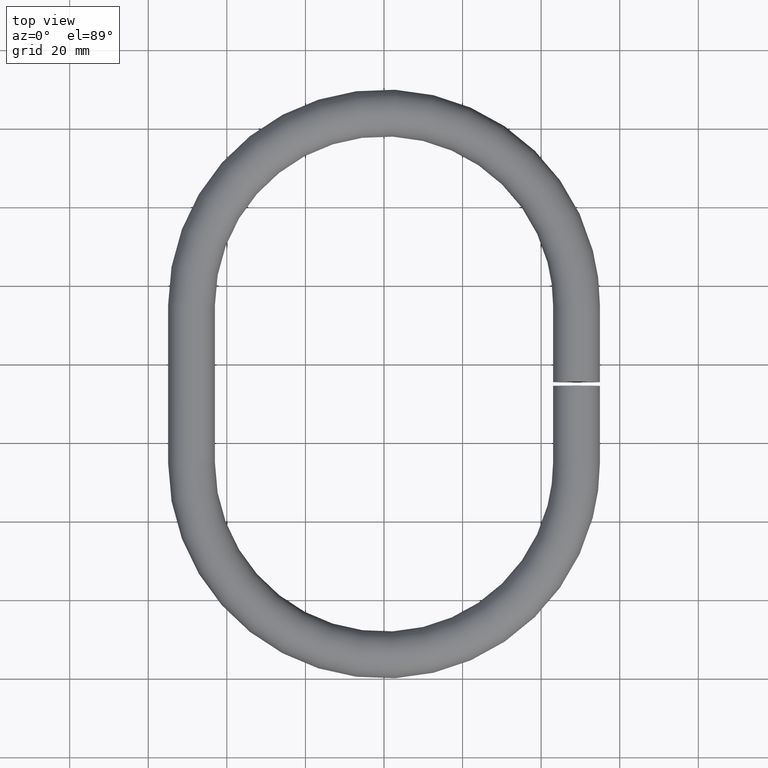
[diagram: clean part render]
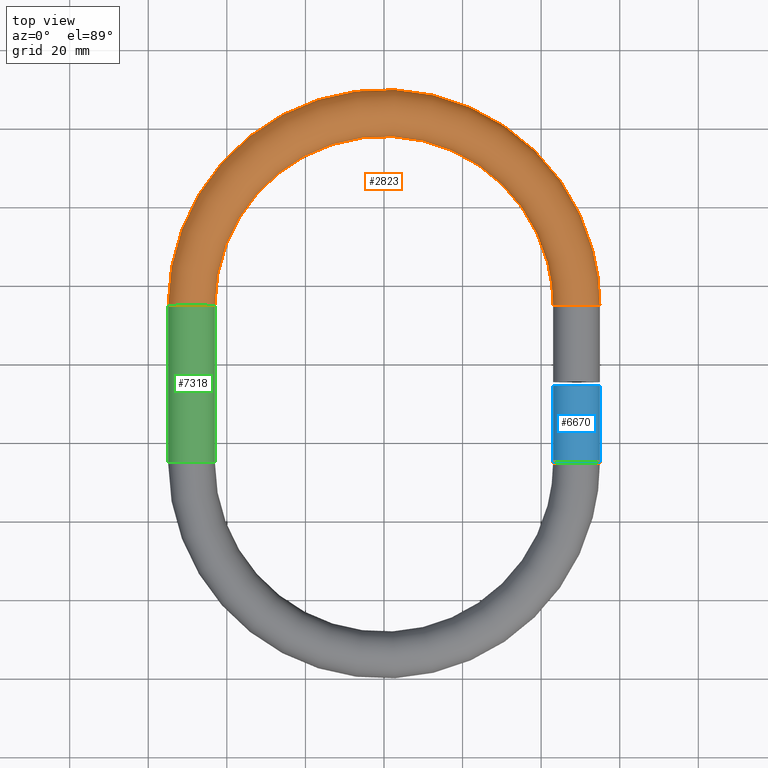
[diagram: same view with three faces highlighted in distinct colors, each labeled with its STEP entity id]
A machine part, top view with three faces highlighted in distinct colors.
Their STEP definitions:

[orange] entity #2823 — the highlighted toroidal blend (fillet) surface has major radius 49 mm and minor (blend) radius 6 mm.
#383 = EDGE_LOOP ( 'NONE', ( #5763 ) ) ;
#1104 = DIRECTION ( 'NONE',  ( -0.0000000000000000000, -0.0000000000000000000, -1.000000000000000000 ) ) ;
#1250 = DIRECTION ( 'NONE',  ( 0.0000000000000000000, 0.0000000000000000000, -1.000000000000000000 ) ) ;
#1458 = DIRECTION ( 'NONE',  ( 0.0000000000000000000, 0.0000000000000000000, -1.000000000000000000 ) ) ;
#2028 = AXIS2_PLACEMENT_3D ( 'NONE', #3315, #7623, #1250 ) ;
#2581 = EDGE_CURVE ( 'NONE', #6643, #6643, #3120, .T. ) ;
#2781 = FACE_OUTER_BOUND ( 'NONE', #383, .T. ) ;
#2823 = ADVANCED_FACE ( 'NONE', ( #2781, #6150 ), #5475, .T. ) ;
#2857 = EDGE_LOOP ( 'NONE', ( #7965 ) ) ;
#3120 = CIRCLE ( 'NONE', #8008, 6.000000000000000900 ) ;
#3205 = DIRECTION ( 'NONE',  ( -1.000000000000000000, 0.0000000000000000000, 0.0000000000000000000 ) ) ;
#3269 = VERTEX_POINT ( 'NONE', #7945 ) ;
#3315 = CARTESIAN_POINT ( 'NONE',  ( -49.00000000000000000, 94.99999999999998600, 0.0000000000000000000 ) ) ;
#3665 = CARTESIAN_POINT ( 'NONE',  ( 49.00000000000000000, 95.00000000000001400, 0.0000000000000000000 ) ) ;
#4830 = CIRCLE ( 'NONE', #2028, 6.000000000000000900 ) ;
#5475 = TOROIDAL_SURFACE ( 'NONE', #6383, 49.00000000000000000, 6.000000000000000900 ) ;
#5763 = ORIENTED_EDGE ( 'NONE', *, *, #9082, .F. ) ;
#6150 = FACE_OUTER_BOUND ( 'NONE', #2857, .T. ) ;
#6383 = AXIS2_PLACEMENT_3D ( 'NONE', #8979, #1104, #3205 ) ;
#6643 = VERTEX_POINT ( 'NONE', #8723 ) ;
#7148 = DIRECTION ( 'NONE',  ( -1.836970198721029700E-016, 1.000000000000000000, 0.0000000000000000000 ) ) ;
#7623 = DIRECTION ( 'NONE',  ( 6.123233995736766000E-017, -1.000000000000000000, 0.0000000000000000000 ) ) ;
#7945 = CARTESIAN_POINT ( 'NONE',  ( -49.00000000000000000, 94.99999999999998600, -6.000000000000000900 ) ) ;
#7965 = ORIENTED_EDGE ( 'NONE', *, *, #2581, .T. ) ;
#8008 = AXIS2_PLACEMENT_3D ( 'NONE', #3665, #7148, #1458 ) ;
#8723 = CARTESIAN_POINT ( 'NONE',  ( 49.00000000000000000, 95.00000000000001400, -6.000000000000000900 ) ) ;
#8979 = CARTESIAN_POINT ( 'NONE',  ( 0.0000000000000000000, 95.00000000000000000, 0.0000000000000000000 ) ) ;
#9082 = EDGE_CURVE ( 'NONE', #3269, #3269, #4830, .T. ) ;

[blue] entity #6670 — the highlighted cylindrical surface (bore or boss wall) has radius 6 mm, axis along (0, -1, 0).
#1277 = CARTESIAN_POINT ( 'NONE',  ( 49.00000000000000000, 55.00000000000001400, 0.0000000000000000000 ) ) ;
#1725 = CARTESIAN_POINT ( 'NONE',  ( 49.00000000000000000, 95.00000000000001400, 0.0000000000000000000 ) ) ;
#1902 = DIRECTION ( 'NONE',  ( -1.836970198721029700E-016, 1.000000000000000000, 0.0000000000000000000 ) ) ;
#2238 = DIRECTION ( 'NONE',  ( 0.0000000000000000000, -1.000000000000000000, 0.0000000000000000000 ) ) ;
#2526 = EDGE_CURVE ( 'NONE', #8091, #8091, #5367, .T. ) ;
#2956 = FACE_OUTER_BOUND ( 'NONE', #3461, .T. ) ;
#3046 = AXIS2_PLACEMENT_3D ( 'NONE', #1725, #3227, #7446 ) ;
#3200 = CIRCLE ( 'NONE', #5848, 6.000000000000000900 ) ;
#3227 = DIRECTION ( 'NONE',  ( 0.0000000000000000000, -1.000000000000000000, 0.0000000000000000000 ) ) ;
#3310 = ORIENTED_EDGE ( 'NONE', *, *, #2526, .T. ) ;
#3461 = EDGE_LOOP ( 'NONE', ( #3310 ) ) ;
#3567 = CARTESIAN_POINT ( 'NONE',  ( 49.00000000000000000, 74.50000000000000000, 0.0000000000000000000 ) ) ;
#3704 = CARTESIAN_POINT ( 'NONE',  ( 49.00000000000000000, 55.00000000000001400, -6.000000000000000900 ) ) ;
#4138 = DIRECTION ( 'NONE',  ( 0.0000000000000000000, 0.0000000000000000000, -1.000000000000000000 ) ) ;
#4265 = VERTEX_POINT ( 'NONE', #3704 ) ;
#4680 = EDGE_CURVE ( 'NONE', #4265, #4265, #3200, .T. ) ;
#5302 = ORIENTED_EDGE ( 'NONE', *, *, #4680, .T. ) ;
#5367 = CIRCLE ( 'NONE', #5550, 6.000000000000000900 ) ;
#5550 = AXIS2_PLACEMENT_3D ( 'NONE', #3567, #2238, #7933 ) ;
#5848 = AXIS2_PLACEMENT_3D ( 'NONE', #1277, #1902, #4138 ) ;
#6382 = CARTESIAN_POINT ( 'NONE',  ( 49.00000000000000000, 74.50000000000000000, -6.000000000000000900 ) ) ;
#6547 = FACE_OUTER_BOUND ( 'NONE', #9134, .T. ) ;
#6670 = ADVANCED_FACE ( 'NONE', ( #6547, #2956 ), #7645, .T. ) ;
#7446 = DIRECTION ( 'NONE',  ( 0.0000000000000000000, 0.0000000000000000000, -1.000000000000000000 ) ) ;
#7645 = CYLINDRICAL_SURFACE ( 'NONE', #3046, 6.000000000000000900 ) ;
#7933 = DIRECTION ( 'NONE',  ( 0.0000000000000000000, 0.0000000000000000000, -1.000000000000000000 ) ) ;
#8091 = VERTEX_POINT ( 'NONE', #6382 ) ;
#9134 = EDGE_LOOP ( 'NONE', ( #5302 ) ) ;

[green] entity #7318 — the highlighted cylindrical surface (bore or boss wall) has radius 6 mm, axis along (0, 1, 0).
#91 = DIRECTION ( 'NONE',  ( 6.123233995736766000E-017, -1.000000000000000000, 0.0000000000000000000 ) ) ;
#1250 = DIRECTION ( 'NONE',  ( 0.0000000000000000000, 0.0000000000000000000, -1.000000000000000000 ) ) ;
#1453 = CIRCLE ( 'NONE', #4098, 6.000000000000000900 ) ;
#1834 = CYLINDRICAL_SURFACE ( 'NONE', #9070, 6.000000000000000900 ) ;
#1937 = FACE_OUTER_BOUND ( 'NONE', #4644, .T. ) ;
#2028 = AXIS2_PLACEMENT_3D ( 'NONE', #3315, #7623, #1250 ) ;
#2123 = CARTESIAN_POINT ( 'NONE',  ( -49.00000000000000000, 54.99999999999999300, -6.000000000000000900 ) ) ;
#2170 = EDGE_CURVE ( 'NONE', #4276, #4276, #1453, .T. ) ;
#2437 = DIRECTION ( 'NONE',  ( 0.0000000000000000000, 0.0000000000000000000, 1.000000000000000000 ) ) ;
#2717 = EDGE_LOOP ( 'NONE', ( #7530 ) ) ;
#3269 = VERTEX_POINT ( 'NONE', #7945 ) ;
#3315 = CARTESIAN_POINT ( 'NONE',  ( -49.00000000000000000, 94.99999999999998600, 0.0000000000000000000 ) ) ;
#3646 = CARTESIAN_POINT ( 'NONE',  ( -49.00000000000000000, 54.99999999999999300, 0.0000000000000000000 ) ) ;
#4098 = AXIS2_PLACEMENT_3D ( 'NONE', #3646, #91, #5817 ) ;
#4276 = VERTEX_POINT ( 'NONE', #2123 ) ;
#4644 = EDGE_LOOP ( 'NONE', ( #9036 ) ) ;
#4830 = CIRCLE ( 'NONE', #2028, 6.000000000000000900 ) ;
#5817 = DIRECTION ( 'NONE',  ( 0.0000000000000000000, 0.0000000000000000000, -1.000000000000000000 ) ) ;
#6424 = FACE_OUTER_BOUND ( 'NONE', #2717, .T. ) ;
#7174 = CARTESIAN_POINT ( 'NONE',  ( -49.00000000000000000, 54.99999999999999300, 0.0000000000000000000 ) ) ;
#7318 = ADVANCED_FACE ( 'NONE', ( #6424, #1937 ), #1834, .T. ) ;
#7530 = ORIENTED_EDGE ( 'NONE', *, *, #2170, .F. ) ;
#7623 = DIRECTION ( 'NONE',  ( 6.123233995736766000E-017, -1.000000000000000000, 0.0000000000000000000 ) ) ;
#7945 = CARTESIAN_POINT ( 'NONE',  ( -49.00000000000000000, 94.99999999999998600, -6.000000000000000900 ) ) ;
#8823 = DIRECTION ( 'NONE',  ( 0.0000000000000000000, 1.000000000000000000, 0.0000000000000000000 ) ) ;
#9036 = ORIENTED_EDGE ( 'NONE', *, *, #9082, .T. ) ;
#9070 = AXIS2_PLACEMENT_3D ( 'NONE', #7174, #8823, #2437 ) ;
#9082 = EDGE_CURVE ( 'NONE', #3269, #3269, #4830, .T. ) ;